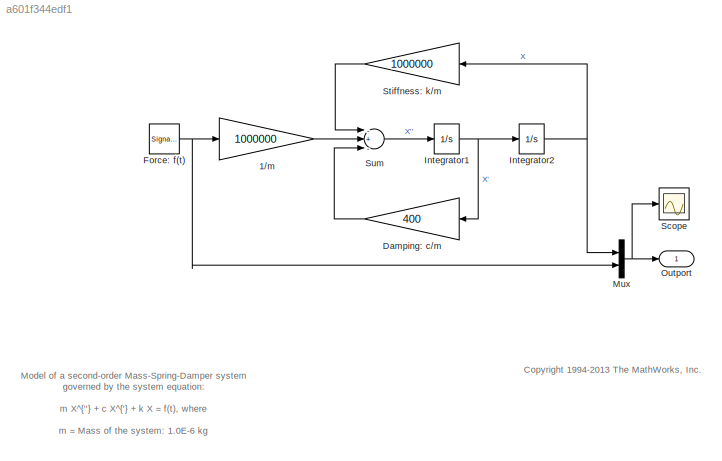
MODEL slx_a601f344edf1
KIND model
CONFIG AbsTol = auto
CONFIG EnableMultiTasking = on
CONFIG FixedStep = 0.001
CONFIG MaxStep = auto
CONFIG MinStep = auto
CONFIG RelTol = 1e-3
CONFIG SampleTimeConstraint = Unconstrained
CONFIG Solver = ode3
CONFIG SolverName = ode3
CONFIG StartTime = 0.0
CONFIG StopTime = .2
BLOCK [Gain] 1//m
  Gain = 1000000
BLOCK [Gain] Damping: c//m
  Gain = 400
BLOCK [SignalGenerator] Force: f(t)
  Amplitude = 4
  Frequency = 20
  Ports = [0, 1]
  WaveForm = square
BLOCK [Integrator] Integrator1
  Ports = [1, 1]
BLOCK [Integrator] Integrator2
  Ports = [1, 1]
BLOCK [Mux] Mux
  DisplayOption = bar
  Inputs = 2
  Ports = [2, 1]
BLOCK [Outport] Outport
  IconDisplay = Port number
  InitialOutput = 0
BLOCK [Scope] Scope
  NumInputPorts = 1
  Ports = [1]
  ScopeSpecificationString = Simulink.scopes.TimeScopeBlockCfg('CurrentConfiguration', extmgr.ConfigurationSet(extmgr.Configuration('Core','General UI',true),extmgr.Configuration('Core','Source UI',true),extmgr.Configuration('Sources','WiredSimulink',true,'DataLoggingSaveFormat','StructureWithTime','DataLoggingLimitDataPoints',true,'DataLoggingDecimation','1','DataLoggingDecimateData',true),extmgr.Configuration('Visuals','Tim...<+1698ch>
BLOCK [Gain] Stiffness: k//m
  Gain = 1000000
BLOCK [Sum] Sum
  Inputs = -+-
  Ports = [3, 1]
ANNOTATION (root): <copyright redacted>
ANNOTATION (root): Model of a second-order Mass-Spring-Damper system governed by the system equation: m X^{''} + c X^{'} + k X = f(t), where m = Mass of the system: 1.0E-6 kg c = Damping ratio: 4.0e-4 Ns/m k = Spring stiffness: 1.0 N/m f(t) = Forcing function in the x-direction (N)
LINE 1//m:1 -> Sum:2
LINE Damping: c//m:1 -> Sum:3
NET Force: f(t):1 -> 1//m:1, Mux:2
NET Integrator1:1 -> Damping: c//m:1, Integrator2:1
NET Integrator2:1 -> Mux:1, Stiffness: k//m:1
NET Mux:1 -> Outport:1, Scope:1
LINE Stiffness: k//m:1 -> Sum:1
LINE Sum:1 -> Integrator1:1
note: NET lines group one-source signal fan-out (src -> all destinations, sorted); 1:1 wires keep LINE
